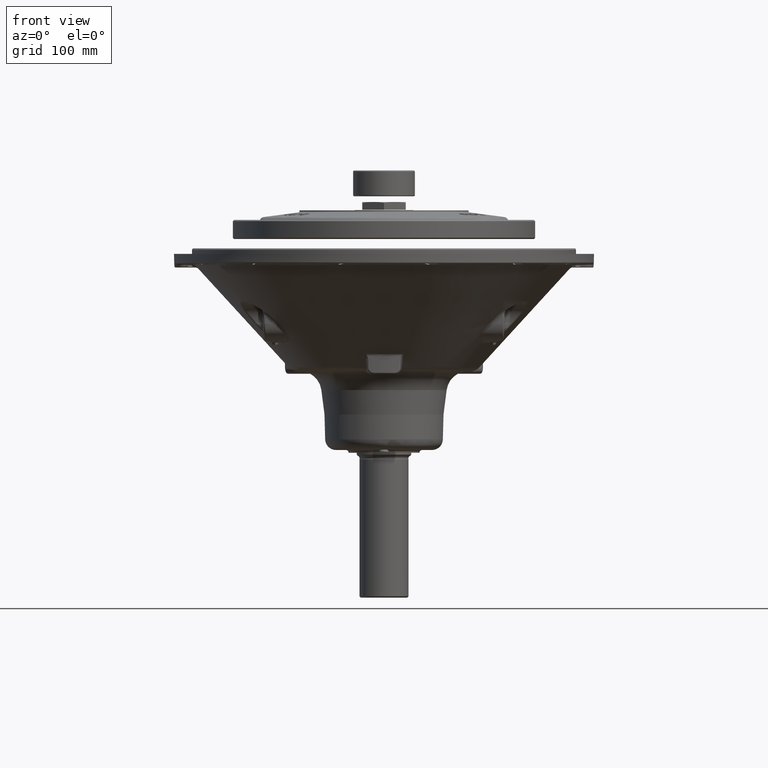
[diagram: clean part render]
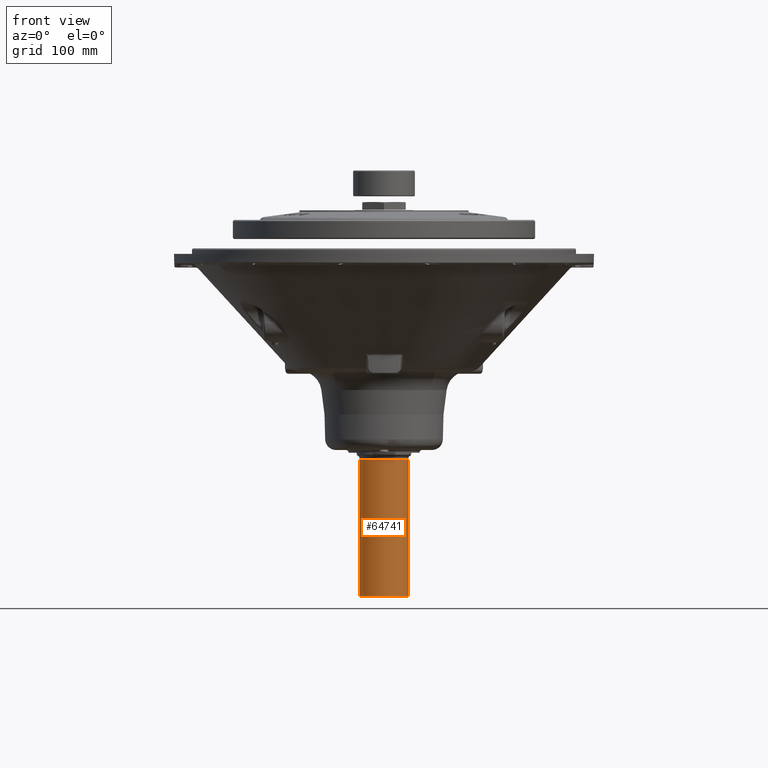
[diagram: same view with one face highlighted and labeled with its STEP entity id]
A machine part, front view. The second image highlights one B-rep face of the part: STEP entity #64741.
In plain terms, the highlighted cylindrical surface (edge-blend (fillet) strip) has radius 28.5686 mm, axis along (-0, -0, 1).
Its self-contained STEP definition (entity closure, byte-faithful):
#6144 = CYLINDRICAL_SURFACE ( 'NONE', #20619, 28.56864999999999500 ) ;
#6145 = FACE_OUTER_BOUND ( 'NONE', #30826, .T. ) ;
#12304 = VERTEX_POINT ( 'NONE', #70731 ) ;
#12308 = VERTEX_POINT ( 'NONE', #70757 ) ;
#12309 = VERTEX_POINT ( 'NONE', #70751 ) ;
#12314 = VERTEX_POINT ( 'NONE', #70829 ) ;
#18531 = EDGE_CURVE ( 'NONE', #12308, #12304, #34505, .T. ) ;
#18959 = EDGE_CURVE ( 'NONE', #12309, #12304, #56290, .T. ) ;
#18967 = EDGE_CURVE ( 'NONE', #12314, #12309, #56297, .T. ) ;
#18977 = EDGE_CURVE ( 'NONE', #12314, #12308, #56306, .T. ) ;
#19884 = DIRECTION ( 'NONE',  ( -0.0000000000000000000, -0.0000000000000000000, 1.000000000000000000 ) ) ;
#19886 = DIRECTION ( 'NONE',  ( 1.000000000000000000, 0.0000000000000000000, 0.0000000000000000000 ) ) ;
#19899 = CARTESIAN_POINT ( 'NONE',  ( 4.394626495907669400E-014, 9.954512432358994900E-030, -239.3251913619955100 ) ) ;
#20059 = CARTESIAN_POINT ( 'NONE',  ( -28.56864999999994800, 3.498650577846112400E-015, 96.99244000000025800 ) ) ;
#20083 = DIRECTION ( 'NONE',  ( -0.0000000000000000000, -0.0000000000000000000, 1.000000000000000000 ) ) ;
#20444 = DIRECTION ( 'NONE',  ( 1.000000000000000000, 0.0000000000000000000, 0.0000000000000000000 ) ) ;
#20446 = DIRECTION ( 'NONE',  ( -0.0000000000000000000, -0.0000000000000000000, 1.000000000000000000 ) ) ;
#20512 = CARTESIAN_POINT ( 'NONE',  ( 4.394626495907669400E-014, 9.954512432358994900E-030, -399.0759099999996200 ) ) ;
#20619 = AXIS2_PLACEMENT_3D ( 'NONE', #45216, #44035, #45209 ) ;
#22963 = AXIS2_PLACEMENT_3D ( 'NONE', #19899, #19884, #19886 ) ;
#22979 = AXIS2_PLACEMENT_3D ( 'NONE', #20512, #20446, #20444 ) ;
#30826 = EDGE_LOOP ( 'NONE', ( #32077, #32345, #32687, #31923 ) ) ;
#31923 = ORIENTED_EDGE ( 'NONE', *, *, #18959, .F. ) ;
#32077 = ORIENTED_EDGE ( 'NONE', *, *, #18967, .F. ) ;
#32345 = ORIENTED_EDGE ( 'NONE', *, *, #18977, .T. ) ;
#32687 = ORIENTED_EDGE ( 'NONE', *, *, #18531, .T. ) ;
#34504 = VECTOR ( 'NONE', #48993, 1000.000000000000000 ) ;
#34505 = LINE ( 'NONE', #48992, #34504 ) ;
#44035 = DIRECTION ( 'NONE',  ( -0.0000000000000000000, -0.0000000000000000000, 1.000000000000000000 ) ) ;
#45209 = DIRECTION ( 'NONE',  ( 1.000000000000000000, 0.0000000000000000000, 0.0000000000000000000 ) ) ;
#45216 = CARTESIAN_POINT ( 'NONE',  ( 4.394626495907669400E-014, 9.954512432358994900E-030, 96.99244000000025800 ) ) ;
#48992 = CARTESIAN_POINT ( 'NONE',  ( 28.56865000000004100, 9.954512432358994900E-030, 96.99244000000025800 ) ) ;
#48993 = DIRECTION ( 'NONE',  ( -0.0000000000000000000, -0.0000000000000000000, 1.000000000000000000 ) ) ;
#56290 = CIRCLE ( 'NONE', #22963, 28.56864999999999500 ) ;
#56292 = VECTOR ( 'NONE', #20083, 1000.000000000000000 ) ;
#56297 = LINE ( 'NONE', #20059, #56292 ) ;
#56306 = CIRCLE ( 'NONE', #22979, 28.56864999999999800 ) ;
#64741 = ADVANCED_FACE ( 'NONE', ( #6145 ), #6144, .T. ) ;
#70731 = CARTESIAN_POINT ( 'NONE',  ( 28.56865000000004400, 9.954512432358994900E-030, -239.3251913619955100 ) ) ;
#70751 = CARTESIAN_POINT ( 'NONE',  ( -28.56864999999995200, 3.498650577846113200E-015, -239.3251913619955100 ) ) ;
#70757 = CARTESIAN_POINT ( 'NONE',  ( 28.56865000000004800, 9.954512432358994900E-030, -399.0759099999996200 ) ) ;
#70829 = CARTESIAN_POINT ( 'NONE',  ( -28.56864999999995500, 3.498650577846113200E-015, -399.0759099999996200 ) ) ;